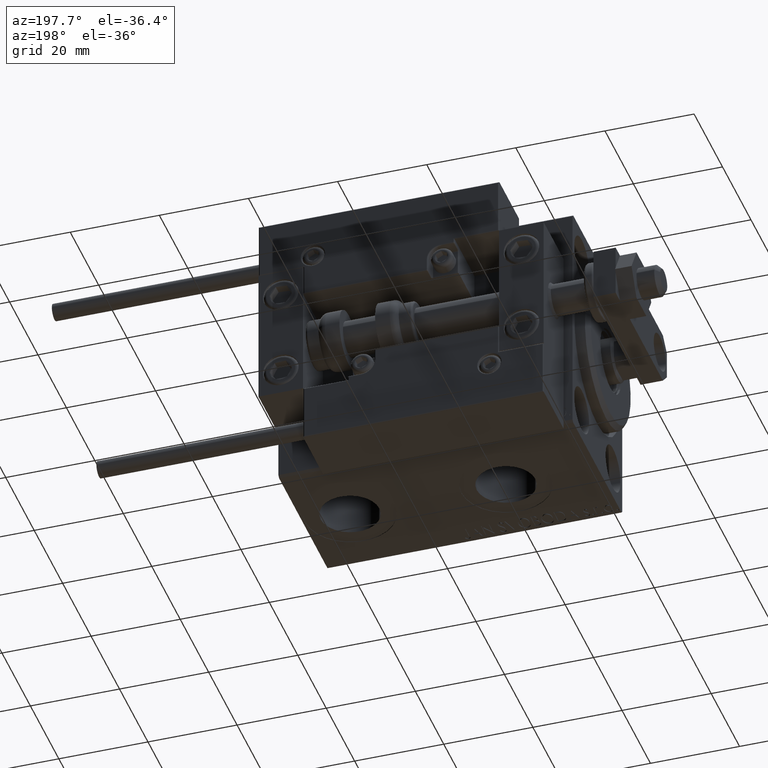
[diagram: clean part render]
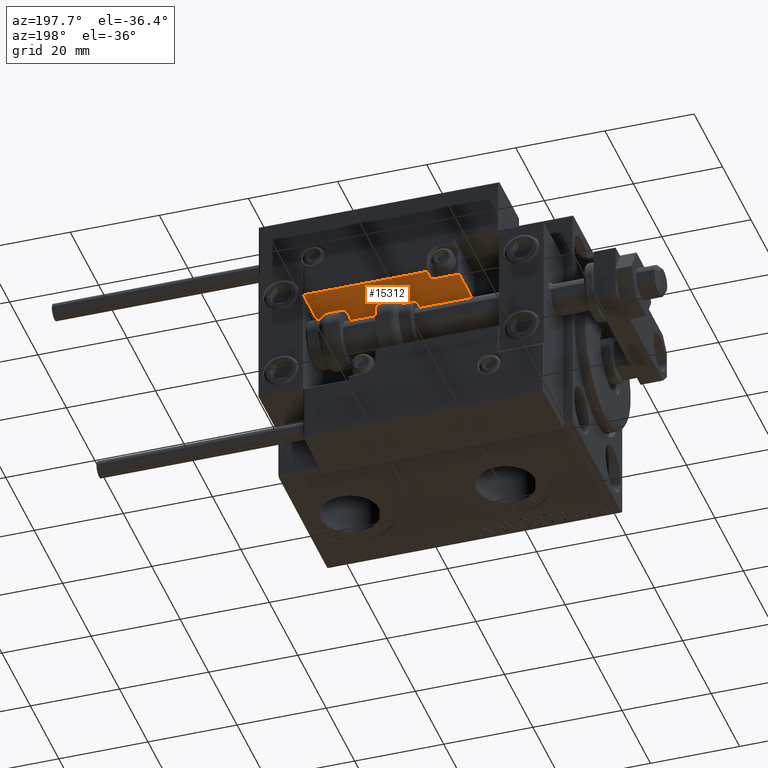
[diagram: same view with one face highlighted and labeled with its STEP entity id]
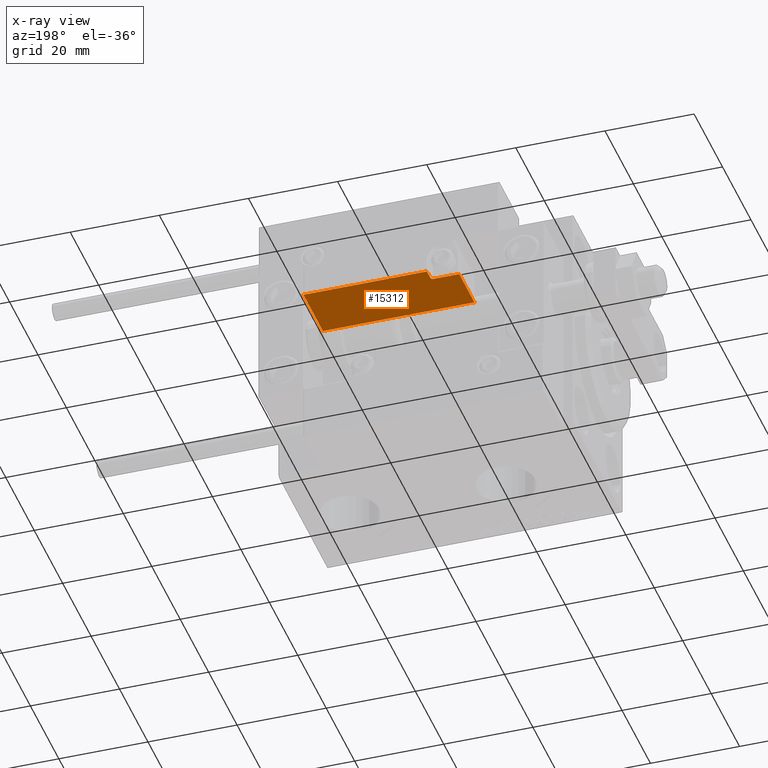
[diagram: x-ray of the same camera — body ghosted, the highlighted face saturated]
A machine part, auxiliary view. The second image highlights one B-rep face of the part: STEP entity #15312.
The next image is the same camera in x-ray: the body ghosted, the highlighted face saturated — about 1% of this face is hidden behind the body in this view.
In plain terms, the highlighted planar face has unit normal (0, 0, 1).
Its self-contained STEP definition (entity closure, byte-faithful):
#96 = ORIENTED_EDGE ( 'NONE', *, *, #9734, .T. ) ;
#574 = CARTESIAN_POINT ( 'NONE',  ( -16.99999999999999289, 3.252606517456513302E-15, 0.000000000000000000 ) ) ;
#1021 = EDGE_CURVE ( 'NONE', #49361, #17300, #31385, .T. ) ;
#1858 = DIRECTION ( 'NONE',  ( -1.000000000000000000, 0.000000000000000000, -0.000000000000000000 ) ) ;
#2400 = CARTESIAN_POINT ( 'NONE',  ( 11.29999999999999893, 3.252606517456513302E-15, 10.69999999999999929 ) ) ;
#3057 = CARTESIAN_POINT ( 'NONE',  ( 11.00000000000000000, 3.252606517456513302E-15, 10.69999999999999929 ) ) ;
#3500 = ORIENTED_EDGE ( 'NONE', *, *, #9436, .T. ) ;
#3630 = AXIS2_PLACEMENT_3D ( 'NONE', #12004, #8180, #27799 ) ;
#3650 = DIRECTION ( 'NONE',  ( -0.000000000000000000, -0.000000000000000000, -1.000000000000000000 ) ) ;
#3692 = VECTOR ( 'NONE', #10793, 1000.000000000000000 ) ;
#3891 = CARTESIAN_POINT ( 'NONE',  ( 10.70000000000000107, 3.252606517456513302E-15, 14.00000000000000000 ) ) ;
#5410 = ORIENTED_EDGE ( 'NONE', *, *, #38765, .T. ) ;
#5837 = VERTEX_POINT ( 'NONE', #34551 ) ;
#6486 = EDGE_CURVE ( 'NONE', #26737, #19653, #46163, .T. ) ;
#6571 = PLANE ( 'NONE',  #7930 ) ;
#7930 = AXIS2_PLACEMENT_3D ( 'NONE', #30006, #17798, #29009 ) ;
#8180 = DIRECTION ( 'NONE',  ( -0.000000000000000000, -1.000000000000000000, -0.000000000000000000 ) ) ;
#9436 = EDGE_CURVE ( 'NONE', #40996, #5837, #27078, .T. ) ;
#9734 = EDGE_CURVE ( 'NONE', #19653, #17300, #37993, .T. ) ;
#10793 = DIRECTION ( 'NONE',  ( 0.000000000000000000, -0.000000000000000000, 1.000000000000000000 ) ) ;
#12004 = CARTESIAN_POINT ( 'NONE',  ( 11.29999999999999893, 3.252606517456513302E-15, 11.29999999999999893 ) ) ;
#13477 = FACE_OUTER_BOUND ( 'NONE', #47285, .T. ) ;
#14316 = DIRECTION ( 'NONE',  ( -0.000000000000000000, -0.000000000000000000, -1.000000000000000000 ) ) ;
#15060 = CARTESIAN_POINT ( 'NONE',  ( -16.99999999999999289, 3.252606517456513302E-15, 0.000000000000000000 ) ) ;
#15312 = ADVANCED_FACE ( 'NONE', ( #13477 ), #6571, .F. ) ;
#15488 = ORIENTED_EDGE ( 'NONE', *, *, #6486, .T. ) ;
#17300 = VERTEX_POINT ( 'NONE', #21346 ) ;
#17798 = DIRECTION ( 'NONE',  ( 0.000000000000000000, 1.000000000000000000, 0.000000000000000000 ) ) ;
#17944 = EDGE_CURVE ( 'NONE', #49361, #44781, #36766, .T. ) ;
#19653 = VERTEX_POINT ( 'NONE', #574 ) ;
#20538 = ORIENTED_EDGE ( 'NONE', *, *, #1021, .F. ) ;
#21346 = CARTESIAN_POINT ( 'NONE',  ( 16.99999999999999289, 3.252606517456513302E-15, 0.000000000000000000 ) ) ;
#21475 = CARTESIAN_POINT ( 'NONE',  ( 10.70000000000000107, 3.252606517456513302E-15, 11.29999999999999893 ) ) ;
#21771 = DIRECTION ( 'NONE',  ( -1.000000000000000000, 0.000000000000000000, -0.000000000000000000 ) ) ;
#26737 = VERTEX_POINT ( 'NONE', #42692 ) ;
#26779 = DIRECTION ( 'NONE',  ( 1.000000000000000000, 0.000000000000000000, 0.000000000000000000 ) ) ;
#27078 = LINE ( 'NONE', #3891, #3692 ) ;
#27799 = DIRECTION ( 'NONE',  ( 0.000000000000000000, 0.000000000000000000, 1.000000000000000000 ) ) ;
#28082 = VECTOR ( 'NONE', #26779, 1000.000000000000000 ) ;
#29009 = DIRECTION ( 'NONE',  ( 0.000000000000000000, -0.000000000000000000, 1.000000000000000000 ) ) ;
#30006 = CARTESIAN_POINT ( 'NONE',  ( -16.99999999999999289, 3.252606517456513302E-15, 14.00000000000000000 ) ) ;
#30139 = VECTOR ( 'NONE', #3650, 1000.000000000000000 ) ;
#30670 = CARTESIAN_POINT ( 'NONE',  ( 16.99999999999999289, 3.252606517456513302E-15, 10.69999999999999929 ) ) ;
#31385 = LINE ( 'NONE', #34231, #30139 ) ;
#33243 = VECTOR ( 'NONE', #1858, 1000.000000000000000 ) ;
#34231 = CARTESIAN_POINT ( 'NONE',  ( 16.99999999999999289, 3.252606517456513302E-15, 14.00000000000000000 ) ) ;
#34494 = VECTOR ( 'NONE', #14316, 1000.000000000000000 ) ;
#34551 = CARTESIAN_POINT ( 'NONE',  ( 10.70000000000000107, 3.252606517456513302E-15, 13.70000000000000107 ) ) ;
#36766 = LINE ( 'NONE', #3057, #33243 ) ;
#37993 = LINE ( 'NONE', #15060, #28082 ) ;
#38506 = CARTESIAN_POINT ( 'NONE',  ( -16.99999999999999289, 3.252606517456513302E-15, 14.00000000000000000 ) ) ;
#38765 = EDGE_CURVE ( 'NONE', #5837, #26737, #40888, .T. ) ;
#40888 = LINE ( 'NONE', #48290, #46551 ) ;
#40996 = VERTEX_POINT ( 'NONE', #21475 ) ;
#42692 = CARTESIAN_POINT ( 'NONE',  ( -16.99999999999999289, 3.252606517456513302E-15, 13.70000000000000107 ) ) ;
#43711 = EDGE_CURVE ( 'NONE', #40996, #44781, #47559, .T. ) ;
#44294 = ORIENTED_EDGE ( 'NONE', *, *, #43711, .F. ) ;
#44551 = ORIENTED_EDGE ( 'NONE', *, *, #17944, .T. ) ;
#44781 = VERTEX_POINT ( 'NONE', #2400 ) ;
#46163 = LINE ( 'NONE', #38506, #34494 ) ;
#46551 = VECTOR ( 'NONE', #21771, 1000.000000000000000 ) ;
#47285 = EDGE_LOOP ( 'NONE', ( #20538, #44551, #44294, #3500, #5410, #15488, #96 ) ) ;
#47559 = CIRCLE ( 'NONE', #3630, 0.5999999999999998668 ) ;
#48290 = CARTESIAN_POINT ( 'NONE',  ( -16.99999999999999289, 3.252606517456513302E-15, 13.70000000000000107 ) ) ;
#49361 = VERTEX_POINT ( 'NONE', #30670 ) ;